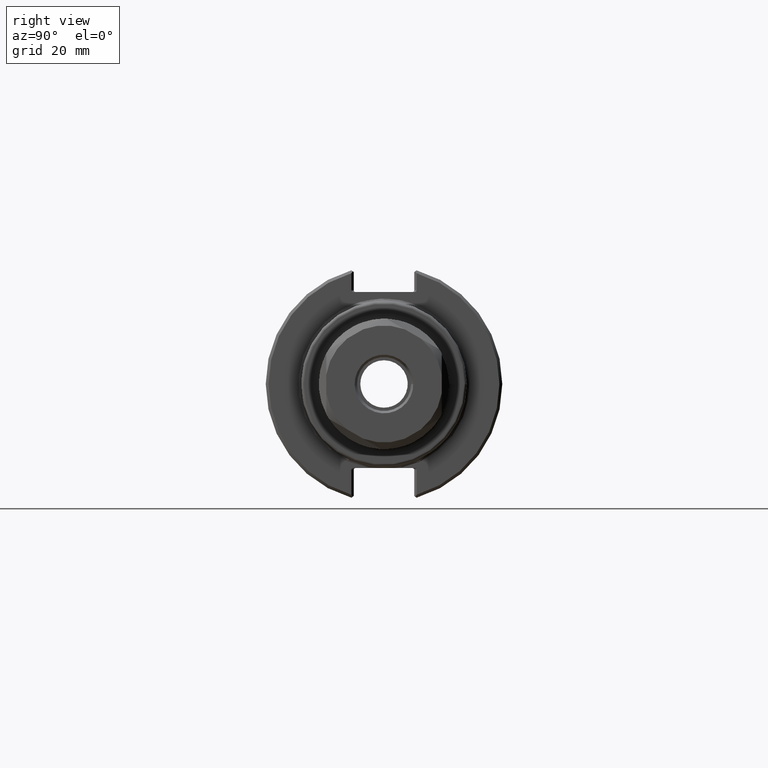
[diagram: clean part render]
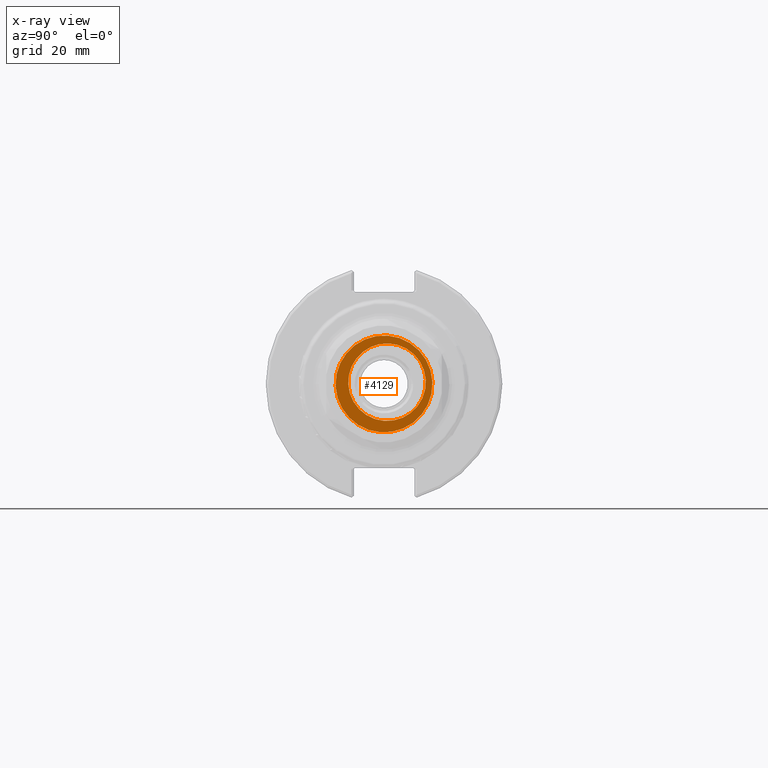
[diagram: x-ray — body ghosted, one internal face saturated and labeled with its STEP entity id]
A machine part, right view, then the same camera in x-ray: the body is ghosted and one INTERNAL B-rep face — a face not visible from any outside direction — is saturated and labeled: STEP entity #4129.
In plain terms, the highlighted planar face has unit normal (-1, 0, -0).
Its self-contained STEP definition (entity closure, byte-faithful):
#2894=CARTESIAN_POINT('',(11.600000000000001,9.475000000000001,0.0));
#2895=VERTEX_POINT('',#2894);
#2896=CARTESIAN_POINT('',(11.600000000000001,-0.94,0.0));
#2897=DIRECTION('',(-1.0,0.0,0.0));
#2898=DIRECTION('',(0.0,0.0,1.0));
#2899=AXIS2_PLACEMENT_3D('',#2896,#2897,#2898);
#2900=CIRCLE('',#2899,10.414999999999999);
#2901=EDGE_CURVE('',#2895,#2895,#2900,.T.);
#4103=CARTESIAN_POINT('',(11.600000000000001,13.0,0.0));
#4104=VERTEX_POINT('',#4103);
#4105=CARTESIAN_POINT('',(11.600000000000001,0.0,0.0));
#4106=DIRECTION('',(1.0,0.0,0.0));
#4107=DIRECTION('',(0.0,1.0,0.0));
#4108=AXIS2_PLACEMENT_3D('',#4105,#4106,#4107);
#4109=CIRCLE('',#4108,13.0);
#4110=EDGE_CURVE('',#4104,#4104,#4109,.T.);
#4118=CARTESIAN_POINT('',(11.600000000000001,11.237500000000001,0.0));
#4119=DIRECTION('',(1.0,0.0,0.0));
#4120=DIRECTION('',(0.0,0.0,-1.0));
#4121=AXIS2_PLACEMENT_3D('',#4118,#4119,#4120);
#4122=PLANE('',#4121);
#4123=ORIENTED_EDGE('',*,*,#4110,.T.);
#4124=EDGE_LOOP('',(#4123));
#4125=FACE_OUTER_BOUND('',#4124,.T.);
#4126=ORIENTED_EDGE('',*,*,#2901,.T.);
#4127=EDGE_LOOP('',(#4126));
#4128=FACE_BOUND('',#4127,.T.);
#4129=ADVANCED_FACE('',(#4125,#4128),#4122,.T.);